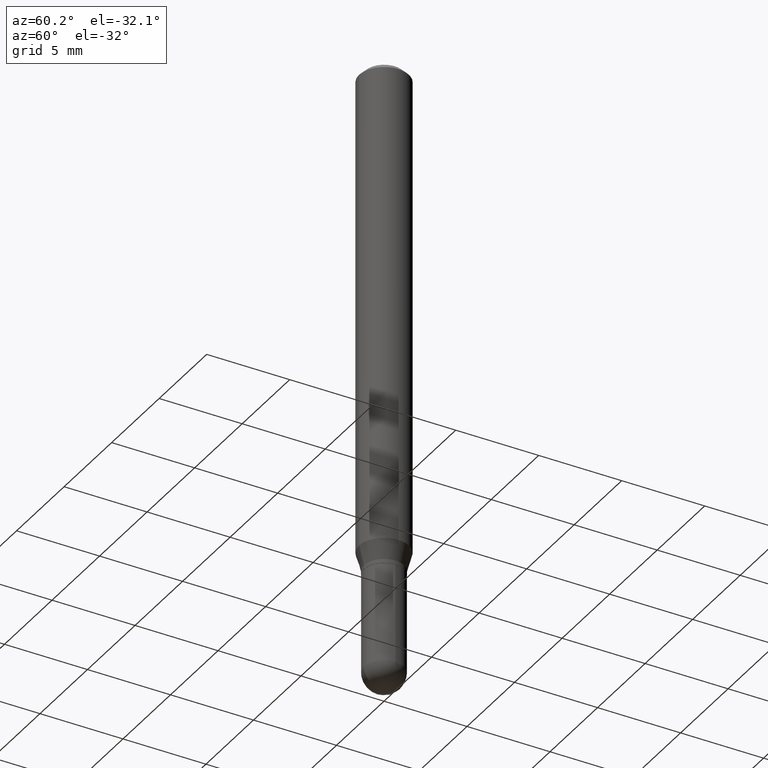
[diagram: clean part render]
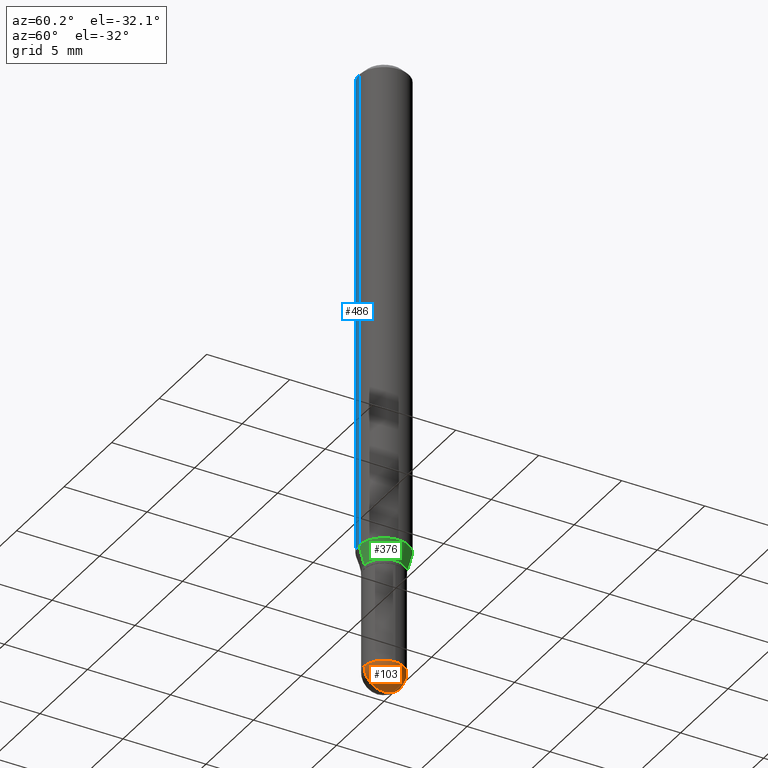
[diagram: same view with three faces highlighted in distinct colors, each labeled with its STEP entity id]
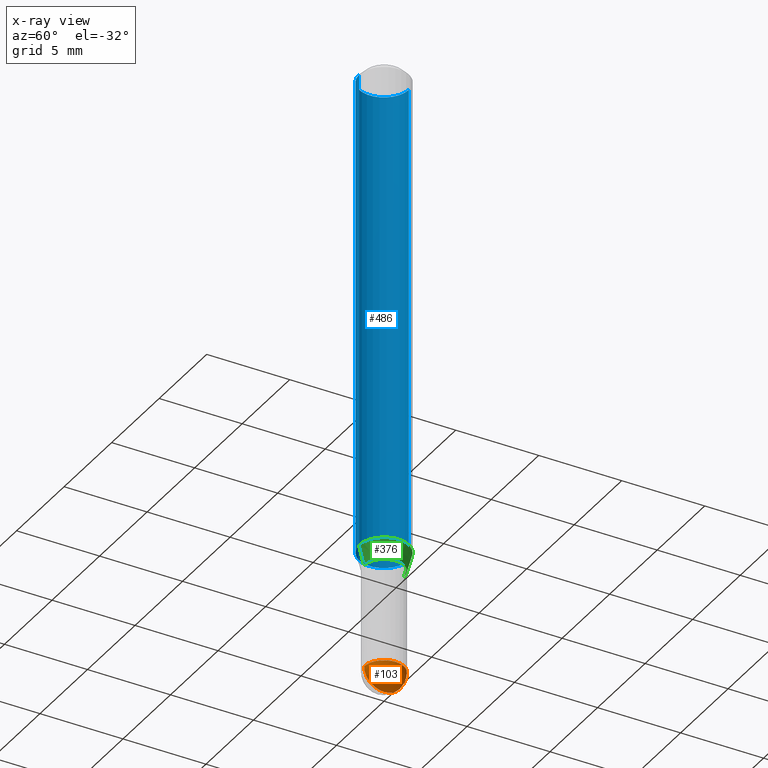
[diagram: x-ray of the same camera — body ghosted, the three highlighted faces saturated]
A machine part, auxiliary view with three faces highlighted in distinct colors.
The next image is the same camera in x-ray (body ghosted, the three faces saturated) — at least one of them is partly hidden behind the body in this view.
Their STEP definitions:

[orange] entity #103 — the highlighted spherical surface has radius 1.2001 mm.
#8 = CARTESIAN_POINT ( 'NONE',  ( 3.543117479841335070E-29, -5.058632737782891656E-15, -1.448849999999999971 ) ) ;
#17 = EDGE_CURVE ( 'NONE', #241, #247, #144, .T. ) ;
#21 = DIRECTION ( 'NONE',  ( -6.982962677686266711E-15, -1.000000000000000000, 5.781688875479930044E-15 ) ) ;
#35 = AXIS2_PLACEMENT_3D ( 'NONE', #8, #171, #333 ) ;
#84 = EDGE_CURVE ( 'NONE', #370, #247, #317, .T. ) ;
#96 = AXIS2_PLACEMENT_3D ( 'NONE', #98, #262, #21 ) ;
#98 = CARTESIAN_POINT ( 'NONE',  ( 3.539076819124962473E-29, -5.064419193908863088E-15, -1.448849999999999971 ) ) ;
#102 = CARTESIAN_POINT ( 'NONE',  ( -3.299449865206404101E-16, -0.04725000000000502409, -1.448849999999999749 ) ) ;
#103 = ADVANCED_FACE ( 'NONE', ( #251 ), #379, .T. ) ;
#106 = CIRCLE ( 'NONE', #293, 0.04724999999999998646 ) ;
#124 = DIRECTION ( 'NONE',  ( -2.445468806185136597E-29, 3.491481338843145583E-15, 1.000000000000000000 ) ) ;
#125 = DIRECTION ( 'NONE',  ( 1.000000000000000000, -7.105427357601001070E-15, 4.926315508542082329E-29 ) ) ;
#144 = CIRCLE ( 'NONE', #432, 0.04724999999999993788 ) ;
#154 = CIRCLE ( 'NONE', #162, 0.04724999999999993788 ) ;
#155 = CARTESIAN_POINT ( 'NONE',  ( 3.357314426466824445E-16, 0.04724999999999490025, -1.448850000000000415 ) ) ;
#162 = AXIS2_PLACEMENT_3D ( 'NONE', #444, #219, #414 ) ;
#164 = ORIENTED_EDGE ( 'NONE', *, *, #442, .F. ) ;
#171 = DIRECTION ( 'NONE',  ( -2.445468806185136597E-29, 3.491481338843145583E-15, 1.000000000000000000 ) ) ;
#191 = ORIENTED_EDGE ( 'NONE', *, *, #84, .F. ) ;
#212 = EDGE_LOOP ( 'NONE', ( #164, #361, #191, #384 ) ) ;
#219 = DIRECTION ( 'NONE',  ( -1.000000000000000000, 6.982962677686265922E-15, -4.883557194083112340E-29 ) ) ;
#228 = DIRECTION ( 'NONE',  ( 7.105427357601001070E-15, 1.000000000000000000, 0.000000000000000000 ) ) ;
#241 = VERTEX_POINT ( 'NONE', #509 ) ;
#247 = VERTEX_POINT ( 'NONE', #155 ) ;
#251 = FACE_OUTER_BOUND ( 'NONE', #212, .T. ) ;
#256 = CARTESIAN_POINT ( 'NONE',  ( 0.04724999999999998646, -4.976146491152720682E-15, -1.448849999999999971 ) ) ;
#262 = DIRECTION ( 'NONE',  ( 1.000000000000000000, -6.982962677686266711E-15, 4.883557194083112901E-29 ) ) ;
#288 = VERTEX_POINT ( 'NONE', #102 ) ;
#293 = AXIS2_PLACEMENT_3D ( 'NONE', #331, #124, #419 ) ;
#317 = CIRCLE ( 'NONE', #35, 0.04724999999999998646 ) ;
#331 = CARTESIAN_POINT ( 'NONE',  ( 3.543117479841335070E-29, -5.058632737782891656E-15, -1.448849999999999971 ) ) ;
#333 = DIRECTION ( 'NONE',  ( 1.000000000000000000, -6.982962677686267499E-15, 0.000000000000000000 ) ) ;
#361 = ORIENTED_EDGE ( 'NONE', *, *, #17, .T. ) ;
#370 = VERTEX_POINT ( 'NONE', #256 ) ;
#379 = SPHERICAL_SURFACE ( 'NONE', #96, 0.04724999999999993788 ) ;
#384 = ORIENTED_EDGE ( 'NONE', *, *, #400, .F. ) ;
#400 = EDGE_CURVE ( 'NONE', #288, #370, #106, .T. ) ;
#414 = DIRECTION ( 'NONE',  ( -6.982962677686266711E-15, -1.000000000000000000, 0.000000000000000000 ) ) ;
#419 = DIRECTION ( 'NONE',  ( 1.000000000000000000, -6.982962677686267499E-15, 0.000000000000000000 ) ) ;
#432 = AXIS2_PLACEMENT_3D ( 'NONE', #481, #125, #228 ) ;
#442 = EDGE_CURVE ( 'NONE', #241, #288, #154, .T. ) ;
#444 = CARTESIAN_POINT ( 'NONE',  ( 3.539076819124962473E-29, -5.064419193908863088E-15, -1.448849999999999971 ) ) ;
#481 = CARTESIAN_POINT ( 'NONE',  ( 3.539076819124962473E-29, -5.064419193908863088E-15, -1.448849999999999971 ) ) ;
#509 = CARTESIAN_POINT ( 'NONE',  ( 3.652604889859023774E-29, -5.232284915232187596E-15, -1.496099999999999985 ) ) ;

[blue] entity #486 — the highlighted cylindrical surface (edge-blend (fillet) strip) has radius 1.4999 mm, axis along (-0, 0, 1).
#28 = CARTESIAN_POINT ( 'NONE',  ( 2.833177605814816812E-29, -4.045167273612921332E-15, -1.158561800470687464 ) ) ;
#36 = CARTESIAN_POINT ( 'NONE',  ( 4.195754854663390985E-16, 0.05904999999999999832, -2.061755595685950355E-16 ) ) ;
#43 = ORIENTED_EDGE ( 'NONE', *, *, #510, .T. ) ;
#44 = CIRCLE ( 'NONE', #227, 0.05904999999999999832 ) ;
#48 = DIRECTION ( 'NONE',  ( -2.445426393882298514E-29, 3.491542075674767907E-15, 1.000000000000000000 ) ) ;
#77 = AXIS2_PLACEMENT_3D ( 'NONE', #128, #294, #369 ) ;
#85 = CARTESIAN_POINT ( 'NONE',  ( -4.123439461173456337E-16, -0.05905000000000405758, -1.158561800470687464 ) ) ;
#105 = ORIENTED_EDGE ( 'NONE', *, *, #172, .F. ) ;
#108 = DIRECTION ( 'NONE',  ( -6.982962677686265922E-15, -1.000000000000000000, 4.626330217890369336E-15 ) ) ;
#128 = CARTESIAN_POINT ( 'NONE',  ( 0.000000000000000000, 0.000000000000000000, 0.000000000000000000 ) ) ;
#134 = FACE_OUTER_BOUND ( 'NONE', #158, .T. ) ;
#147 = VERTEX_POINT ( 'NONE', #249 ) ;
#158 = EDGE_LOOP ( 'NONE', ( #105, #216, #43, #364 ) ) ;
#172 = EDGE_CURVE ( 'NONE', #448, #147, #326, .T. ) ;
#175 = LINE ( 'NONE', #407, #507 ) ;
#195 = CIRCLE ( 'NONE', #303, 0.05904999999999999832 ) ;
#204 = DIRECTION ( 'NONE',  ( -2.445426393882298514E-29, 3.491542075674767907E-15, 1.000000000000000000 ) ) ;
#216 = ORIENTED_EDGE ( 'NONE', *, *, #289, .T. ) ;
#227 = AXIS2_PLACEMENT_3D ( 'NONE', #28, #234, #108 ) ;
#234 = DIRECTION ( 'NONE',  ( -2.445426393882298514E-29, 3.491542075674767907E-15, 1.000000000000000000 ) ) ;
#249 = CARTESIAN_POINT ( 'NONE',  ( 4.195754854663675961E-16, 0.05904999999999994281, -0.01500000000000029955 ) ) ;
#278 = VERTEX_POINT ( 'NONE', #465 ) ;
#289 = EDGE_CURVE ( 'NONE', #448, #330, #44, .T. ) ;
#294 = DIRECTION ( 'NONE',  ( -2.445426393882298514E-29, 3.491542075674767907E-15, 1.000000000000000000 ) ) ;
#303 = AXIS2_PLACEMENT_3D ( 'NONE', #439, #392, #389 ) ;
#326 = LINE ( 'NONE', #36, #378 ) ;
#330 = VERTEX_POINT ( 'NONE', #85 ) ;
#338 = EDGE_CURVE ( 'NONE', #147, #278, #195, .T. ) ;
#364 = ORIENTED_EDGE ( 'NONE', *, *, #338, .F. ) ;
#369 = DIRECTION ( 'NONE',  ( -6.982962677686265922E-15, -1.000000000000000000, 3.491542075674767907E-15 ) ) ;
#378 = VECTOR ( 'NONE', #48, 39.37007874015748143 ) ;
#389 = DIRECTION ( 'NONE',  ( -6.982962677686265922E-15, -1.000000000000000000, 3.505890868245046092E-15 ) ) ;
#392 = DIRECTION ( 'NONE',  ( -2.445426393882298514E-29, 3.491542075674767907E-15, 1.000000000000000000 ) ) ;
#407 = CARTESIAN_POINT ( 'NONE',  ( -4.123439461173739834E-16, -0.05904999999999999832, 2.061755595685950355E-16 ) ) ;
#439 = CARTESIAN_POINT ( 'NONE',  ( 3.668139590823469947E-31, -5.237313113512184524E-17, -0.01500000000000009139 ) ) ;
#440 = CYLINDRICAL_SURFACE ( 'NONE', #77, 0.05904999999999999832 ) ;
#447 = CARTESIAN_POINT ( 'NONE',  ( 4.195754854663673496E-16, 0.05904999999999594601, -1.158561800470687686 ) ) ;
#448 = VERTEX_POINT ( 'NONE', #447 ) ;
#465 = CARTESIAN_POINT ( 'NONE',  ( -4.123439461173736383E-16, -0.05905000000000005383, -0.01499999999999988495 ) ) ;
#486 = ADVANCED_FACE ( 'NONE', ( #134 ), #440, .T. ) ;
#507 = VECTOR ( 'NONE', #204, 39.37007874015748143 ) ;
#510 = EDGE_CURVE ( 'NONE', #330, #278, #175, .T. ) ;

[green] entity #376 — the highlighted conical surface has half-angle 15 deg.
#7 = CARTESIAN_POINT ( 'NONE',  ( 2.940869781282851862E-29, -4.198928500206475713E-15, -1.202599999999999891 ) ) ;
#19 = VERTEX_POINT ( 'NONE', #501 ) ;
#41 = VERTEX_POINT ( 'NONE', #274 ) ;
#42 = DIRECTION ( 'NONE',  ( -2.445426393882298514E-29, 3.491542075674767907E-15, 1.000000000000000000 ) ) ;
#45 = FACE_OUTER_BOUND ( 'NONE', #243, .T. ) ;
#49 = DIRECTION ( 'NONE',  ( -6.982962677686265922E-15, -1.000000000000000000, 2.890844437739957528E-15 ) ) ;
#75 = DIRECTION ( 'NONE',  ( -2.445426393882298514E-29, 3.491542075674767907E-15, 1.000000000000000000 ) ) ;
#85 = CARTESIAN_POINT ( 'NONE',  ( -4.123439461173456337E-16, -0.05905000000000405758, -1.158561800470687464 ) ) ;
#202 = ORIENTED_EDGE ( 'NONE', *, *, #354, .F. ) ;
#220 = CARTESIAN_POINT ( 'NONE',  ( 2.833177605814816812E-29, -4.045167273612921332E-15, -1.158561800470687464 ) ) ;
#223 = EDGE_CURVE ( 'NONE', #41, #448, #271, .T. ) ;
#237 = CARTESIAN_POINT ( 'NONE',  ( 3.357314426466771197E-16, 0.04724999999999585781, -1.202600000000000113 ) ) ;
#243 = EDGE_LOOP ( 'NONE', ( #431, #321, #275, #202 ) ) ;
#271 = LINE ( 'NONE', #237, #273 ) ;
#273 = VECTOR ( 'NONE', #396, 39.37007874015748854 ) ;
#274 = CARTESIAN_POINT ( 'NONE',  ( 3.776534640565222593E-16, 0.04724999999999585781, -1.202600000000000113 ) ) ;
#275 = ORIENTED_EDGE ( 'NONE', *, *, #320, .F. ) ;
#280 = CARTESIAN_POINT ( 'NONE',  ( -3.299449865206470168E-16, -0.04725000000000425388, -1.202599999999999669 ) ) ;
#320 = EDGE_CURVE ( 'NONE', #330, #448, #420, .T. ) ;
#321 = ORIENTED_EDGE ( 'NONE', *, *, #223, .T. ) ;
#323 = AXIS2_PLACEMENT_3D ( 'NONE', #332, #42, #365 ) ;
#330 = VERTEX_POINT ( 'NONE', #85 ) ;
#332 = CARTESIAN_POINT ( 'NONE',  ( 2.940869781282851862E-29, -4.198928500206475713E-15, -1.202599999999999891 ) ) ;
#344 = AXIS2_PLACEMENT_3D ( 'NONE', #7, #409, #49 ) ;
#354 = EDGE_CURVE ( 'NONE', #19, #330, #508, .T. ) ;
#365 = DIRECTION ( 'NONE',  ( -6.982962677686265922E-15, -1.000000000000000000, 2.890844437739957528E-15 ) ) ;
#374 = EDGE_CURVE ( 'NONE', #19, #41, #425, .T. ) ;
#376 = ADVANCED_FACE ( 'NONE', ( #45 ), #485, .T. ) ;
#395 = AXIS2_PLACEMENT_3D ( 'NONE', #220, #75, #402 ) ;
#396 = DIRECTION ( 'NONE',  ( 1.839019923739601499E-15, 0.2588190451025251249, 0.9659258262890670910 ) ) ;
#402 = DIRECTION ( 'NONE',  ( -6.982962677686265922E-15, -1.000000000000000000, 4.626330217890369336E-15 ) ) ;
#409 = DIRECTION ( 'NONE',  ( -2.445426393882298514E-29, 3.491542075674767907E-15, 1.000000000000000000 ) ) ;
#420 = CIRCLE ( 'NONE', #395, 0.05904999999999999832 ) ;
#425 = CIRCLE ( 'NONE', #344, 0.04725000000000005584 ) ;
#431 = ORIENTED_EDGE ( 'NONE', *, *, #374, .T. ) ;
#447 = CARTESIAN_POINT ( 'NONE',  ( 4.195754854663673496E-16, 0.05904999999999594601, -1.158561800470687686 ) ) ;
#448 = VERTEX_POINT ( 'NONE', #447 ) ;
#453 = DIRECTION ( 'NONE',  ( -1.807323732225331323E-15, -0.2588190451025183525, 0.9659258262890689783 ) ) ;
#475 = VECTOR ( 'NONE', #453, 39.37007874015748854 ) ;
#485 = CONICAL_SURFACE ( 'NONE', #323, 0.04725000000000005584, 0.2617993877991504625 ) ;
#501 = CARTESIAN_POINT ( 'NONE',  ( -3.299449865206470168E-16, -0.04725000000000425388, -1.202599999999999669 ) ) ;
#508 = LINE ( 'NONE', #280, #475 ) ;